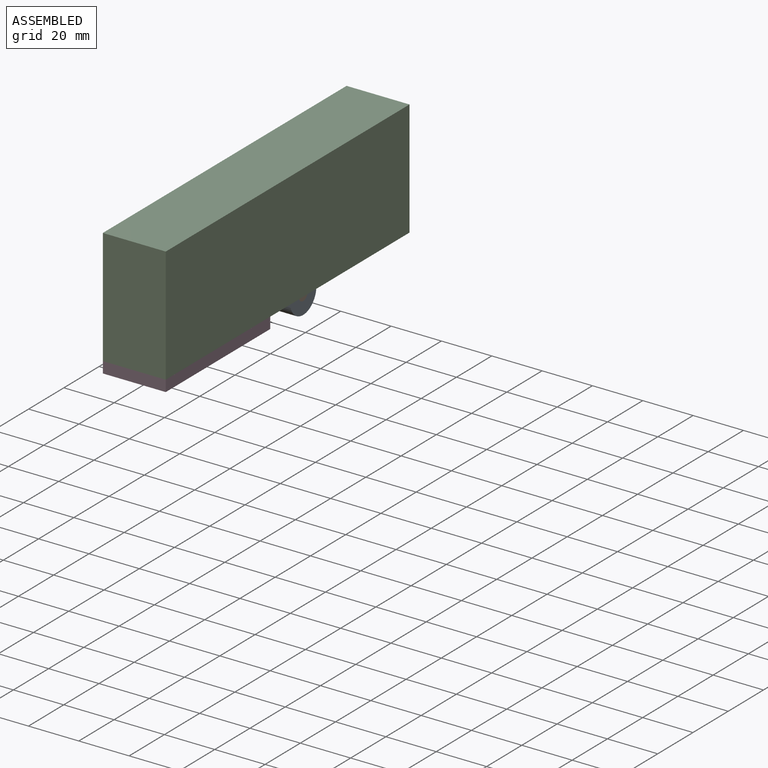
[diagram: assembled view]
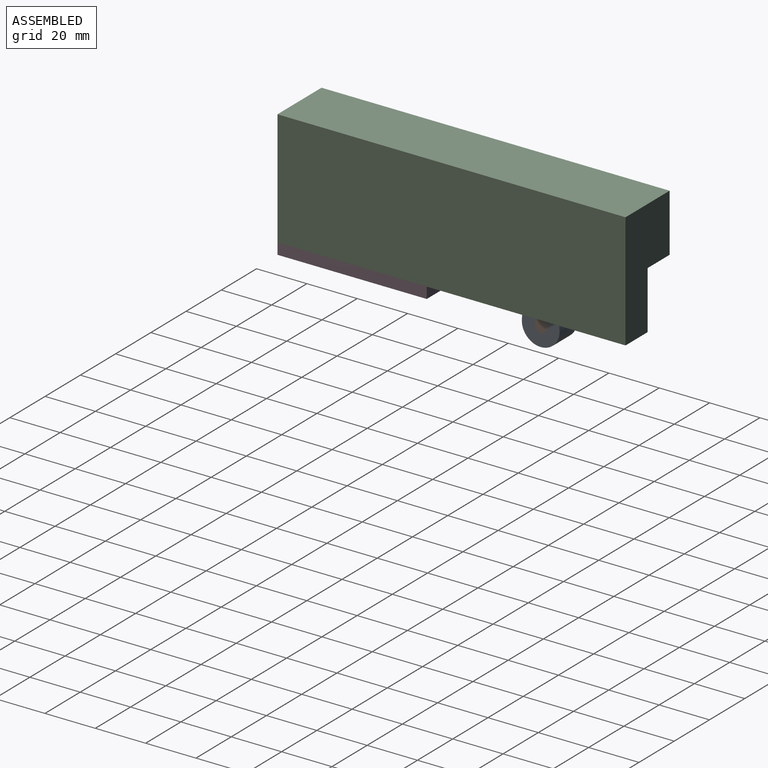
[diagram: assembled view, second angle]
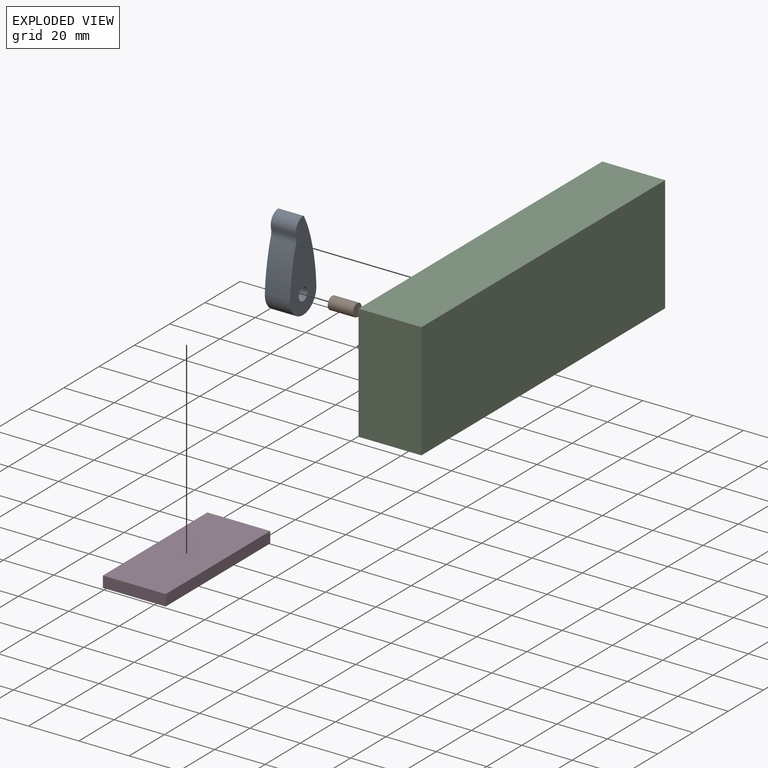
[diagram: exploded view]
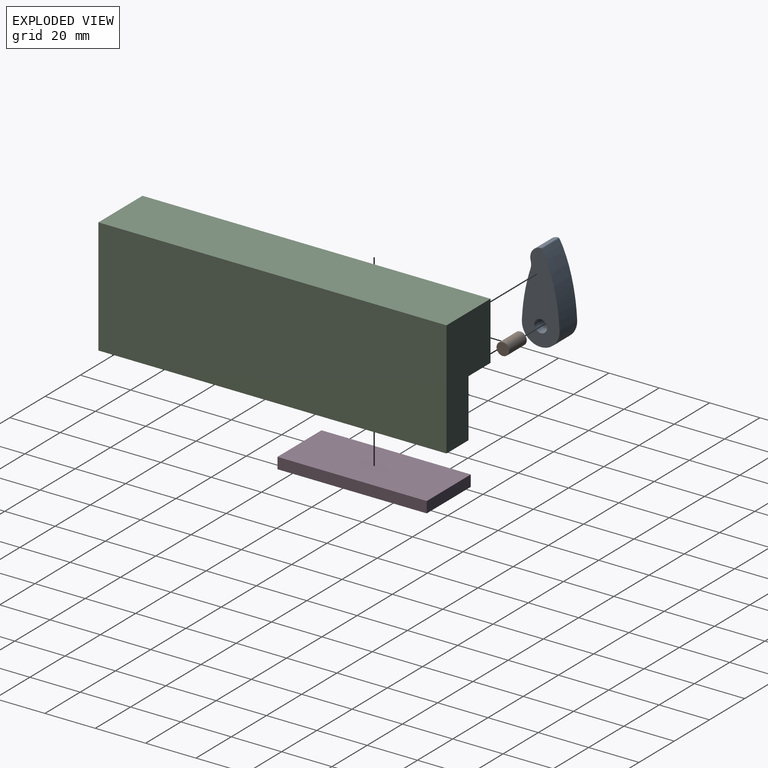
[diagram: exploded view, second angle]
ASSEMBLY  parts=4 mates=2
PART A: 15 faces, bbox 10x15x35.6 mm
  f0: extruded ~10x6.45mm, area 65.9mm2, adj f1,f11,f13,f14
  f1: extruded ~12.17x10mm, area 131.2mm2, adj f0,f2,f13,f14
  f2: cylinder r=0.5mm len=10mm, axis (1,0,0), area 5.2mm2, adj f1,f3,f13,f14
  f3: cylinder r=4.35mm len=10mm, axis (1,0,0), area 78.5mm2, adj f2,f4,f13,f14
  f4: cylinder r=5mm len=10mm, axis (1,0,0), area 29.8mm2, adj f3,f5,f13,f14
  f5: extruded ~10x3.95mm, area 41.1mm2, adj f4,f6,f13,f14
  f6: extruded ~10x6.45mm, area 65.9mm2, adj f5,f7,f13,f14
  f7: extruded ~10x8.54mm, area 85.9mm2, adj f6,f8,f13,f14
  f8: extruded ~10x0.67mm, area 6.8mm2, adj f7,f9,f13,f14
  f9: cylinder r=7.5mm len=15mm, axis (1,0,0), area 235.6mm2, adj f8,f10,f13,f14
  f10: extruded ~10x0.67mm, area 6.8mm2, adj f9,f11,f13,f14
  f11: extruded ~10x8.54mm, area 85.9mm2, adj f0,f10,f13,f14
  f12: cylinder r=2.5mm len=10mm, axis (1,0,0), area 157.1mm2, adj f13,f14
  f13: plane 35.58x15mm, normal (-1,0,0), area 363.4mm2, adj f0,f1,f2,f3,f4,f5,f6,f7
  f14: plane 35.58x15mm, normal (1,0,0), area 363.4mm2, adj f0,f1,f2,f3,f4,f5,f6,f7
PART B: 3 faces, bbox 10x5x5 mm
  f0: cylinder r=2.5mm len=10mm, axis (1,0,0), area 157.1mm2, adj f1,f2
  f1: plane 5x5mm, normal (-1,0,0), area 19.6mm2, adj f0
  f2: plane 5x5mm, normal (1,0,0), area 19.6mm2, adj f0
PART C: 15 faces, bbox 25x138.3x46 mm
  f0: plane 138.3x46.02mm, normal (-1,0,0), area 4880mm2, adj f2,f3,f4,f5,f8,f9
  f1: cylinder r=0.5mm len=12.5mm, axis (-1,0,0), area 0.6mm2, adj f6,f7,f12
  f2: plane 138.3x25mm, normal (0,0,-1), area 2651.1mm2, adj f0,f3,f5,f7,f9,f12
  f3: plane 46.02x25mm, normal (0,1,0), area 862.9mm2, adj f0,f2,f4,f7,f8,f12
  f4: plane 138.3x25mm, normal (0,0,1), area 3457.6mm2, adj f0,f3,f5,f7
  f5: plane 46.02x25mm, normal (0,-1,0), area 1150.5mm2, adj f0,f2,f4,f7
  f6: cylinder r=4.35mm len=12.5mm, axis (-1,0,0), area 0.6mm2, adj f1,f7,f12
  f7: plane 138.3x46.02mm, normal (1,0,0), area 6364.7mm2, adj f1,f2,f3,f4,f5,f6
  f8: plane 64.53x12.5mm, normal (0,0,-1), area 806.6mm2, adj f0,f3,f9,f12
  f9: plane 23.01x12.5mm, normal (0,1,0), area 287.6mm2, adj f0,f2,f8,f12
  f10: cylinder r=2.5mm len=12.5mm, axis (1,0,0), area 196.3mm2, adj f12,f13
  f11: cylinder r=2.5mm len=12.5mm, axis (1,0,0), area 196.3mm2, adj f12,f14
  f12: plane 64.53x23.01mm, normal (-1,0,0), area 1445.4mm2, adj f1,f2,f3,f6,f8,f9,f10,f11
  f13: plane 5x5mm, normal (-1,0,0), area 19.6mm2, adj f10
  f14: plane 5x5mm, normal (-1,0,0), area 19.6mm2, adj f11
PART D: 6 faces, bbox 25x59.3x4.4 mm
  f0: plane 59.32x25mm, normal (0,0,1), area 1483mm2, adj f1,f3,f4,f5
  f1: plane 25x4.44mm, normal (0,-1,0), area 111mm2, adj f0,f2,f4,f5
  f2: plane 59.32x25mm, normal (0,0,-1), area 1483mm2, adj f1,f3,f4,f5
  f3: plane 25x4.44mm, normal (0,1,0), area 111mm2, adj f0,f2,f4,f5
  f4: plane 59.32x4.44mm, normal (1,0,0), area 263.4mm2, adj f0,f1,f2,f3
  f5: plane 59.32x4.44mm, normal (-1,0,0), area 263.4mm2, adj f0,f1,f2,f3
PLACE A t=(-5.87,-27.16,105.42)mm
PLACE B t=(-5.87,-27.16,105.42)mm fixed
PLACE C t=(-5.87,-27.16,105.42)mm
PLACE D t=(-5.87,-27.16,105.42)mm fixed
MATE slider D.f1 <-> C.f5  axis (0,-1,0) through (-5.87,-123.01,114.63)mm
MATE revolute A.f12 <-> B.f0  axis (-1,0,0) through (-15.87,-27.16,105.42)mm
